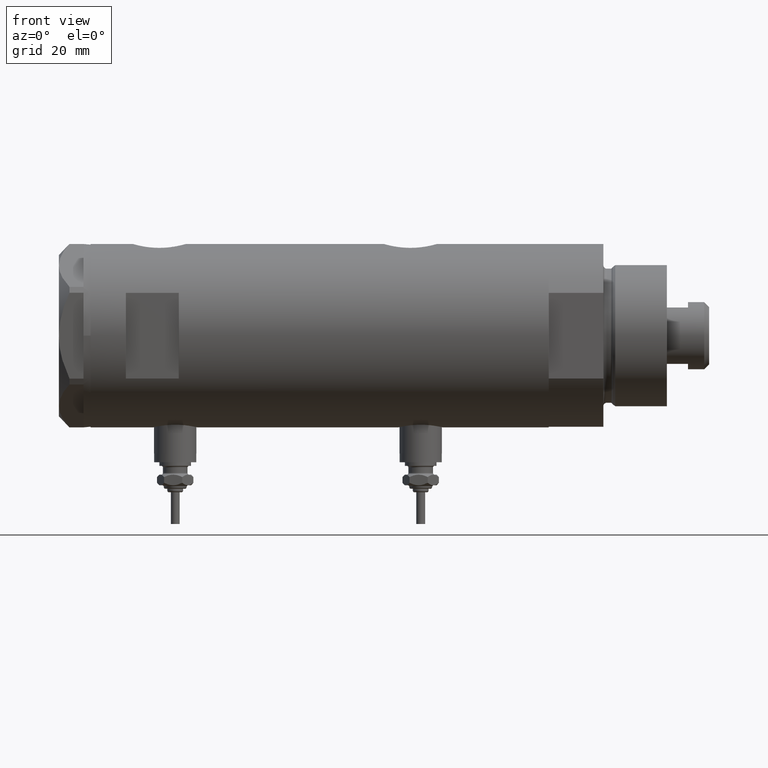
[diagram: clean part render]
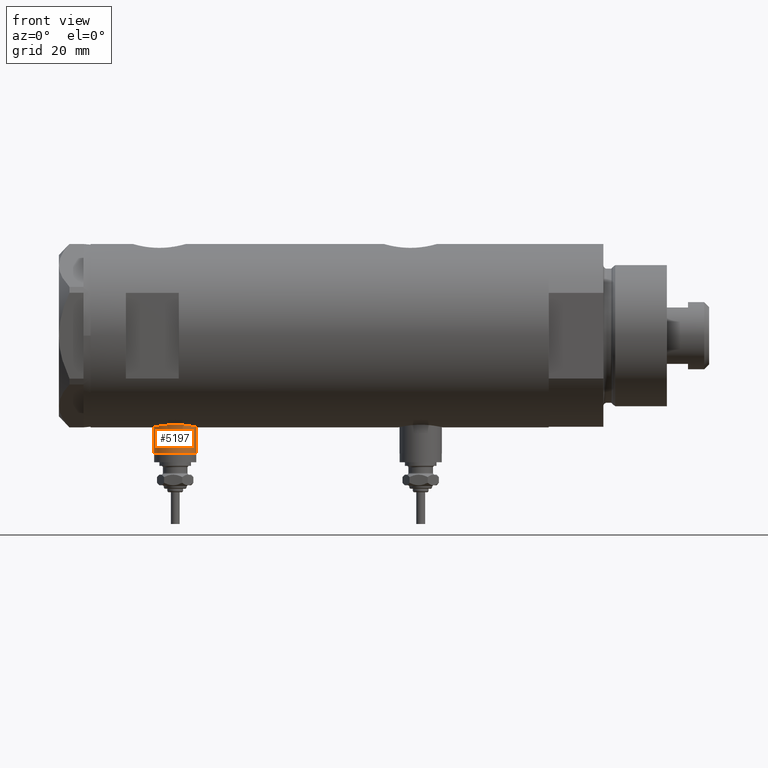
[diagram: same view with one face highlighted and labeled with its STEP entity id]
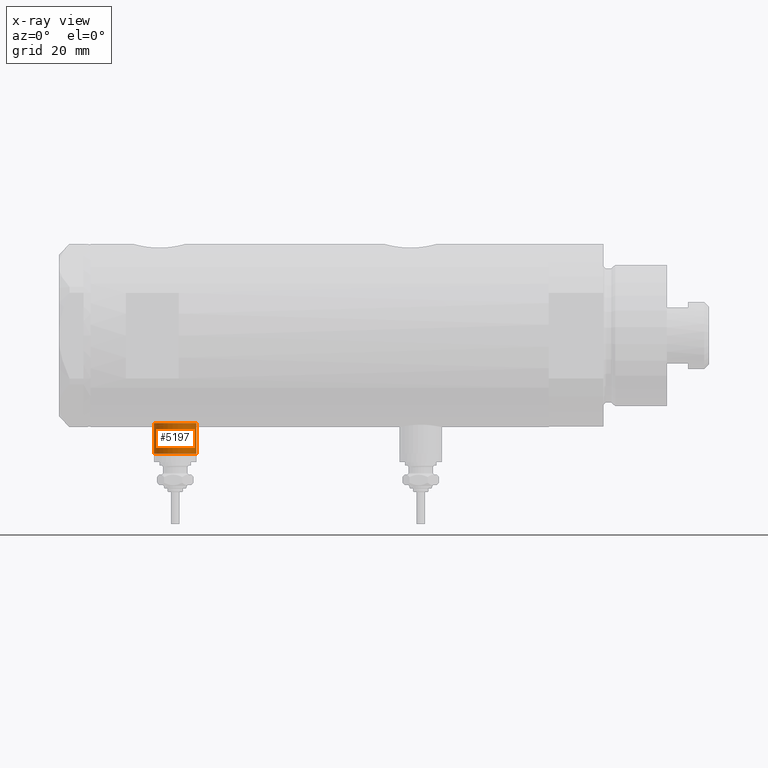
[diagram: x-ray of the same camera — body ghosted, the highlighted face saturated]
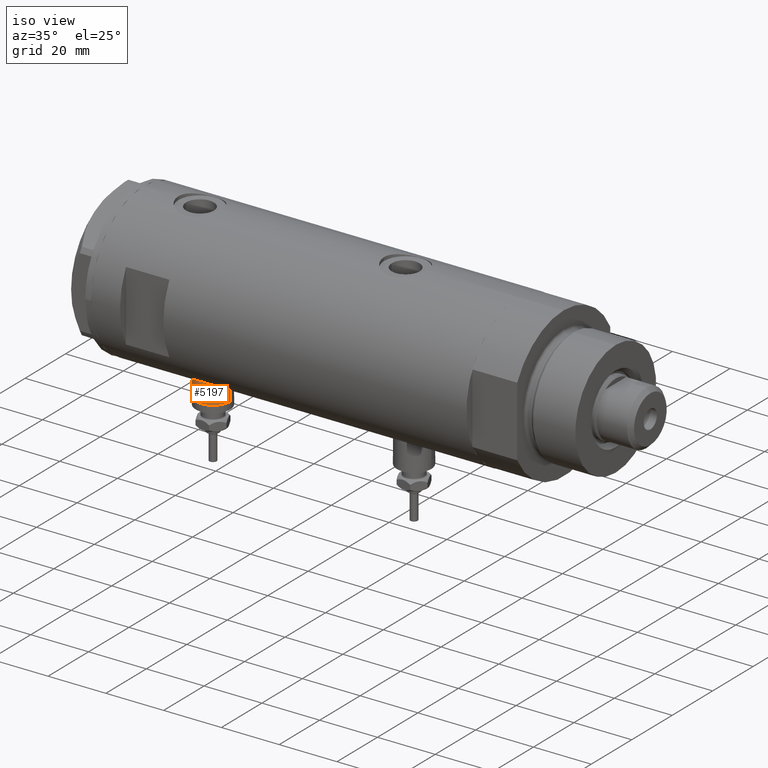
[diagram: same view with one face highlighted and labeled with its STEP entity id]
A machine part, front view. The second image highlights one B-rep face of the part: STEP entity #5197.
The next image is the same camera in x-ray: the body ghosted, the highlighted face saturated — about 0% of this face is hidden behind the body in this view.
A second angle (iso view) of the same face is appended — the face is thin or edge-on in the first view.
In plain terms, the highlighted cylindrical surface (edge-blend (fillet) strip) has radius 6 mm, axis along (0, 0, 1).
Its self-contained STEP definition (entity closure, byte-faithful):
#48 = CARTESIAN_POINT ( 'NONE',  ( -33.39999999999999858, 7.347880794884111847E-16, 46.95000000000000284 ) ) ;
#85 = AXIS2_PLACEMENT_3D ( 'NONE', #572, #3036, #109 ) ;
#101 = VECTOR ( 'NONE', #5804, 1000.000000000000000 ) ;
#109 = DIRECTION ( 'NONE',  ( 0.000000000000000000, 0.000000000000000000, 1.000000000000000000 ) ) ;
#239 = VERTEX_POINT ( 'NONE', #4996 ) ;
#312 = CARTESIAN_POINT ( 'NONE',  ( -24.80000000000000426, 0.000000000000000000, 34.95000000000000995 ) ) ;
#507 = DIRECTION ( 'NONE',  ( -1.000000000000000000, 0.000000000000000000, 0.000000000000000000 ) ) ;
#572 = CARTESIAN_POINT ( 'NONE',  ( -24.80000000000000426, 0.000000000000000000, 40.95000000000000995 ) ) ;
#1124 = EDGE_CURVE ( 'NONE', #3474, #6104, #4791, .T. ) ;
#1563 = EDGE_CURVE ( 'NONE', #4406, #239, #2650, .T. ) ;
#1636 = LINE ( 'NONE', #5486, #2840 ) ;
#1827 = EDGE_CURVE ( 'NONE', #3474, #4406, #1636, .T. ) ;
#1843 = ORIENTED_EDGE ( 'NONE', *, *, #3382, .F. ) ;
#1947 = DIRECTION ( 'NONE',  ( 1.000000000000000000, -0.000000000000000000, -0.000000000000000000 ) ) ;
#2111 = ORIENTED_EDGE ( 'NONE', *, *, #1563, .T. ) ;
#2372 = DIRECTION ( 'NONE',  ( 0.000000000000000000, 0.000000000000000000, 1.000000000000000000 ) ) ;
#2409 = CYLINDRICAL_SURFACE ( 'NONE', #2574, 5.999999999999998224 ) ;
#2574 = AXIS2_PLACEMENT_3D ( 'NONE', #3833, #1947, #3344 ) ;
#2650 = CIRCLE ( 'NONE', #85, 5.999999999999998224 ) ;
#2799 = CARTESIAN_POINT ( 'NONE',  ( -33.39999999999999858, 7.347880794884107903E-16, 46.95000000000000284 ) ) ;
#2840 = VECTOR ( 'NONE', #4004, 1000.000000000000000 ) ;
#2842 = CARTESIAN_POINT ( 'NONE',  ( -33.39999999999999858, 0.000000000000000000, 40.95000000000000995 ) ) ;
#3036 = DIRECTION ( 'NONE',  ( -1.000000000000000000, 0.000000000000000000, 0.000000000000000000 ) ) ;
#3344 = DIRECTION ( 'NONE',  ( 0.000000000000000000, 0.000000000000000000, -1.000000000000000000 ) ) ;
#3382 = EDGE_CURVE ( 'NONE', #6104, #239, #3750, .T. ) ;
#3474 = VERTEX_POINT ( 'NONE', #4036 ) ;
#3750 = LINE ( 'NONE', #48, #101 ) ;
#3833 = CARTESIAN_POINT ( 'NONE',  ( -33.39999999999999858, 0.000000000000000000, 40.95000000000000995 ) ) ;
#4004 = DIRECTION ( 'NONE',  ( 1.000000000000000000, -0.000000000000000000, -0.000000000000000000 ) ) ;
#4036 = CARTESIAN_POINT ( 'NONE',  ( -33.39999999999999858, 0.000000000000000000, 34.95000000000000995 ) ) ;
#4406 = VERTEX_POINT ( 'NONE', #312 ) ;
#4726 = FACE_OUTER_BOUND ( 'NONE', #6033, .T. ) ;
#4791 = CIRCLE ( 'NONE', #6121, 5.999999999999998224 ) ;
#4996 = CARTESIAN_POINT ( 'NONE',  ( -24.80000000000000426, 7.347880794884107903E-16, 46.95000000000000284 ) ) ;
#5197 = ADVANCED_FACE ( 'NONE', ( #4726 ), #2409, .T. ) ;
#5246 = ORIENTED_EDGE ( 'NONE', *, *, #1124, .F. ) ;
#5258 = ORIENTED_EDGE ( 'NONE', *, *, #1827, .T. ) ;
#5486 = CARTESIAN_POINT ( 'NONE',  ( -33.39999999999999858, 0.000000000000000000, 34.95000000000000995 ) ) ;
#5804 = DIRECTION ( 'NONE',  ( 1.000000000000000000, -0.000000000000000000, -0.000000000000000000 ) ) ;
#6033 = EDGE_LOOP ( 'NONE', ( #1843, #5246, #5258, #2111 ) ) ;
#6104 = VERTEX_POINT ( 'NONE', #2799 ) ;
#6121 = AXIS2_PLACEMENT_3D ( 'NONE', #2842, #507, #2372 ) ;